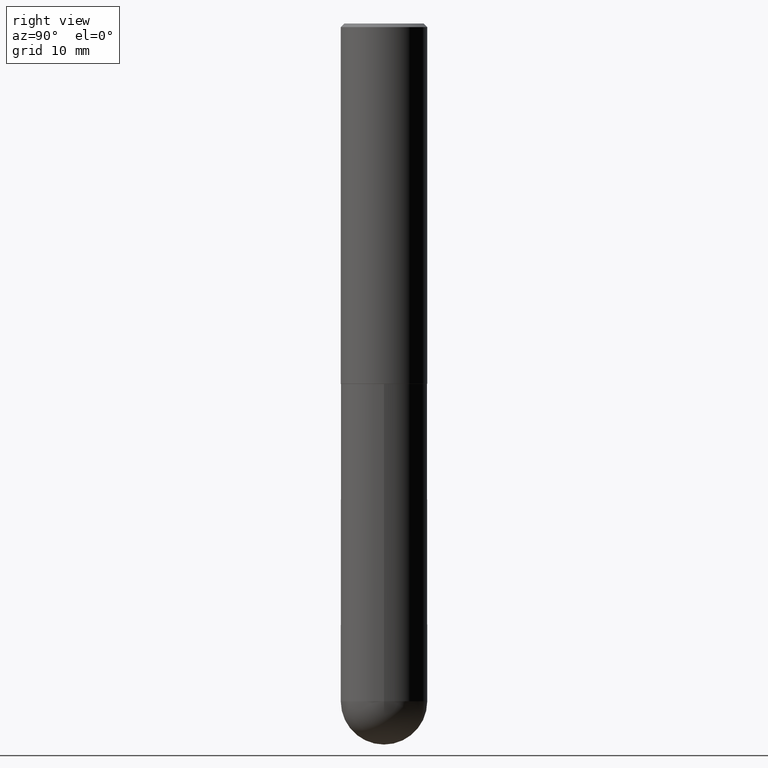
[diagram: clean part render]
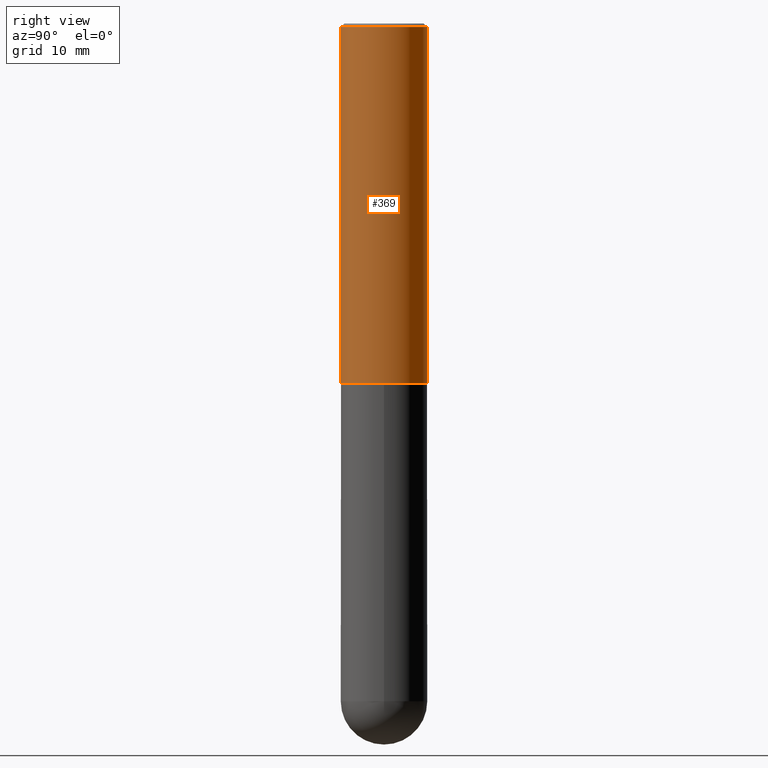
[diagram: same view with one face highlighted and labeled with its STEP entity id]
A machine part, right view. The second image highlights one B-rep face of the part: STEP entity #369.
In plain terms, the highlighted cylindrical surface (partial cylindrical patch) has radius 5.9995 mm, axis along (-0, 0, 1).
Its self-contained STEP definition (entity closure, byte-faithful):
#3 = DIRECTION ( 'NONE',  ( -6.982962677686265922E-15, -1.000000000000000000, 3.487819265831411744E-15 ) ) ;
#10 = CARTESIAN_POINT ( 'NONE',  ( 1.678301941865357183E-15, 0.2362000000000001043, -8.243920991056659143E-16 ) ) ;
#27 = CARTESIAN_POINT ( 'NONE',  ( -1.649375784469449391E-15, -0.2362000000000070710, -1.967499999999999361 ) ) ;
#29 = EDGE_CURVE ( 'NONE', #176, #346, #160, .T. ) ;
#32 = CARTESIAN_POINT ( 'NONE',  ( 1.678301941865381835E-15, 0.2361999999999933597, -1.967500000000001137 ) ) ;
#40 = CARTESIAN_POINT ( 'NONE',  ( -1.620449627073635079E-15, -0.2362000000000000766, -0.01999999999999922673 ) ) ;
#51 = ORIENTED_EDGE ( 'NONE', *, *, #262, .T. ) ;
#58 = VERTEX_POINT ( 'NONE', #226 ) ;
#79 = ORIENTED_EDGE ( 'NONE', *, *, #200, .F. ) ;
#86 = VERTEX_POINT ( 'NONE', #40 ) ;
#94 = AXIS2_PLACEMENT_3D ( 'NONE', #102, #110, #3 ) ;
#102 = CARTESIAN_POINT ( 'NONE',  ( 4.892686564428472780E-31, -6.980458078794815271E-17, -0.02000000000000005246 ) ) ;
#110 = DIRECTION ( 'NONE',  ( -2.446343282214230400E-29, 3.490229039397398712E-15, 1.000000000000000000 ) ) ;
#119 = DIRECTION ( 'NONE',  ( -2.446343282214230400E-29, 3.490229039397398712E-15, 1.000000000000000000 ) ) ;
#125 = DIRECTION ( 'NONE',  ( -2.446343282214230400E-29, 3.490229039397398317E-15, 1.000000000000000000 ) ) ;
#160 = CIRCLE ( 'NONE', #227, 0.2362000000000002153 ) ;
#165 = DIRECTION ( 'NONE',  ( -6.982962677686265922E-15, -1.000000000000000000, 3.490229039397398712E-15 ) ) ;
#173 = ORIENTED_EDGE ( 'NONE', *, *, #195, .F. ) ;
#176 = VERTEX_POINT ( 'NONE', #27 ) ;
#178 = LINE ( 'NONE', #242, #338 ) ;
#187 = VECTOR ( 'NONE', #125, 39.37007874015748143 ) ;
#189 = CARTESIAN_POINT ( 'NONE',  ( 4.813180407756499025E-29, -6.867025635014382393E-15, -1.967500000000000249 ) ) ;
#195 = EDGE_CURVE ( 'NONE', #86, #58, #218, .T. ) ;
#197 = CYLINDRICAL_SURFACE ( 'NONE', #314, 0.2362000000000001043 ) ;
#199 = FACE_OUTER_BOUND ( 'NONE', #384, .T. ) ;
#200 = EDGE_CURVE ( 'NONE', #176, #86, #178, .T. ) ;
#209 = ORIENTED_EDGE ( 'NONE', *, *, #29, .T. ) ;
#218 = CIRCLE ( 'NONE', #94, 0.2361999999999999933 ) ;
#226 = CARTESIAN_POINT ( 'NONE',  ( 1.649375784469496525E-15, 0.2361999999999999378, -0.02000000000000087472 ) ) ;
#227 = AXIS2_PLACEMENT_3D ( 'NONE', #189, #119, #257 ) ;
#242 = CARTESIAN_POINT ( 'NONE',  ( -1.649375784469496722E-15, -0.2362000000000001043, 8.243920991056659143E-16 ) ) ;
#257 = DIRECTION ( 'NONE',  ( -6.982962677686265133E-15, -1.000000000000000000, 3.469747663417773847E-15 ) ) ;
#262 = EDGE_CURVE ( 'NONE', #346, #58, #295, .T. ) ;
#267 = CARTESIAN_POINT ( 'NONE',  ( 0.000000000000000000, 0.000000000000000000, 0.000000000000000000 ) ) ;
#295 = LINE ( 'NONE', #10, #187 ) ;
#314 = AXIS2_PLACEMENT_3D ( 'NONE', #267, #330, #165 ) ;
#330 = DIRECTION ( 'NONE',  ( -2.446343282214230400E-29, 3.490229039397398712E-15, 1.000000000000000000 ) ) ;
#338 = VECTOR ( 'NONE', #354, 39.37007874015748143 ) ;
#346 = VERTEX_POINT ( 'NONE', #32 ) ;
#354 = DIRECTION ( 'NONE',  ( -2.446343282214230400E-29, 3.490229039397398317E-15, 1.000000000000000000 ) ) ;
#369 = ADVANCED_FACE ( 'NONE', ( #199 ), #197, .T. ) ;
#384 = EDGE_LOOP ( 'NONE', ( #209, #51, #173, #79 ) ) ;